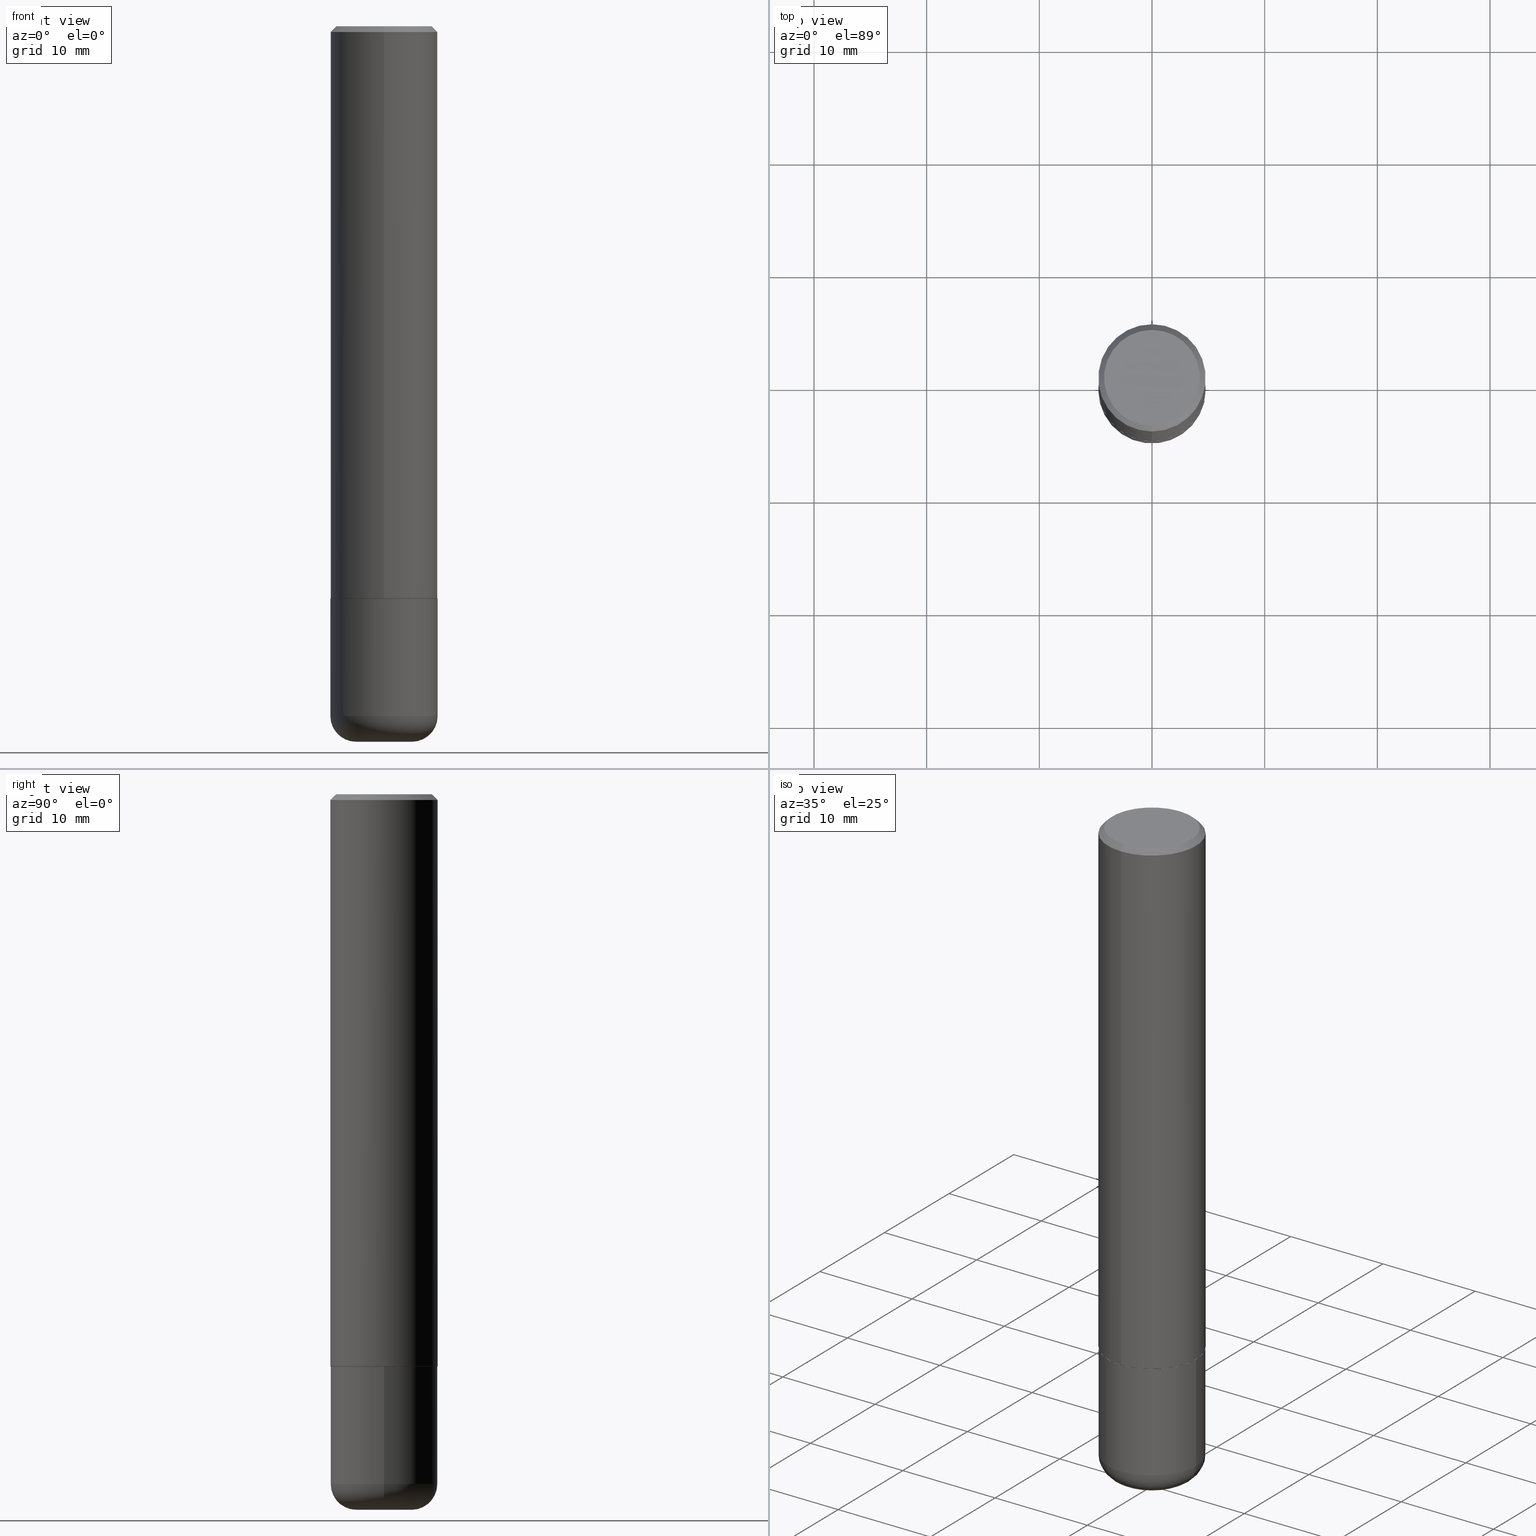
[diagram: canonical four-view strip — front | top / right | iso, engineering-drawing reading convention]
A machine part, canonical four-view strip (front | top / right | iso — engineering-drawing reading convention). The complete STEP part file that produces these views, byte-faithful:
ISO-10303-21;
HEADER;
FILE_DESCRIPTION (( 'STEP AP203' ),
    '1' );
FILE_NAME ('38819.STEP',
    '2024-03-03T14:47:22',
    ( '' ),
    ( '' ),
    'SwSTEP 2.0',
    'SolidWorks 2023',
    '' );
FILE_SCHEMA (( 'CONFIG_CONTROL_DESIGN' ));
ENDSEC;

DATA;
#1 = DIRECTION ( 'NONE',  ( 1.000000000000000000, -6.982962677686266711E-15, 0.000000000000000000 ) ) ;
#2 = EDGE_LOOP ( 'NONE', ( #22, #128, #374, #410 ) ) ;
#3 = DIRECTION ( 'NONE',  ( -2.445162114595160294E-29, 3.491920538655792902E-15, 1.000000000000000000 ) ) ;
#4 = ORIENTED_EDGE ( 'NONE', *, *, #284, .T. ) ;
#5 = ADVANCED_FACE ( 'NONE', ( #221 ), #319, .T. ) ;
#6 = DIRECTION ( 'NONE',  ( -6.982962677686265922E-15, -1.000000000000000000, 3.483106191921934371E-15 ) ) ;
#7 = DIRECTION ( 'NONE',  ( -2.445162114595160575E-29, 3.491920538655792507E-15, 1.000000000000000000 ) ) ;
#8 = DIRECTION ( 'NONE',  ( -2.445468806185136597E-29, 3.491481338843145583E-15, 1.000000000000000000 ) ) ;
#9 = CIRCLE ( 'NONE', #328, 0.09750000000000003109 ) ;
#10 = ORIENTED_EDGE ( 'NONE', *, *, #122, .T. ) ;
#11 = AXIS2_PLACEMENT_3D ( 'NONE', #102, #327, #169 ) ;
#12 = DIRECTION ( 'NONE',  ( 1.000000000000000000, -6.982962677686265133E-15, 4.883557194083112340E-29 ) ) ;
#13 = DIRECTION ( 'NONE',  ( 1.000000000000000000, -6.982962677686261189E-15, 0.000000000000000000 ) ) ;
#14 = DIRECTION ( 'NONE',  ( 1.000000000000000000, -6.982962677686265922E-15, 0.000000000000000000 ) ) ;
#15 = CONICAL_SURFACE ( 'NONE', #304, 0.1864999999999999714, 0.7853981633977044075 ) ;
#16 = VERTEX_POINT ( 'NONE', #381 ) ;
#17 =( NAMED_UNIT ( * ) SI_UNIT ( $, .STERADIAN. ) SOLID_ANGLE_UNIT ( ) );
#18 = FACE_OUTER_BOUND ( 'NONE', #183, .T. ) ;
#19 = AXIS2_PLACEMENT_3D ( 'NONE', #226, #133, #359 ) ;
#20 = CIRCLE ( 'NONE', #350, 0.1875000000000000278 ) ;
#21 = CARTESIAN_POINT ( 'NONE',  ( 0.09750000000000001721, -9.095308887686393314E-15, -2.410000000000000142 ) ) ;
#22 = ORIENTED_EDGE ( 'NONE', *, *, #253, .T. ) ;
#23 = DIRECTION ( 'NONE',  ( 1.000000000000000000, -6.982962677686265922E-15, 4.876176775795935793E-29 ) ) ;
#24 = CALENDAR_DATE ( 2024, 3, 3 ) ;
#25 = AXIS2_PLACEMENT_3D ( 'NONE', #299, #44, #165 ) ;
#26 = COORDINATED_UNIVERSAL_TIME_OFFSET ( 5, 0, .BEHIND. ) ;
#27 = CARTESIAN_POINT ( 'NONE',  ( 4.890937612370273194E-29, -6.982962677686291165E-15, -2.000000000000000000 ) ) ;
#28 = ORIENTED_EDGE ( 'NONE', *, *, #362, .F. ) ;
#29 = APPROVAL_STATUS ( 'not_yet_approved' ) ;
#30 = EDGE_CURVE ( 'NONE', #89, #55, #33, .T. ) ;
#31 = CARTESIAN_POINT ( 'NONE',  ( 4.890937612370273194E-29, -6.982962677686291165E-15, -2.000000000000000000 ) ) ;
#32 = ADVANCED_FACE ( 'NONE', ( #349 ), #172, .T. ) ;
#33 = LINE ( 'NONE', #211, #132 ) ;
#34 = PERSON_AND_ORGANIZATION_ROLE ( 'classification_officer' ) ;
#35 = CIRCLE ( 'NONE', #140, 0.1864999999999999714 ) ;
#36 = DIRECTION ( 'NONE',  ( -2.445162114595160575E-29, 3.491920538655792507E-15, 1.000000000000000000 ) ) ;
#37 =( GEOMETRIC_REPRESENTATION_CONTEXT ( 3 ) GLOBAL_UNCERTAINTY_ASSIGNED_CONTEXT ( ( #120 ) ) GLOBAL_UNIT_ASSIGNED_CONTEXT ( ( #343, #57, #17 ) ) REPRESENTATION_CONTEXT ( 'NONE', 'WORKASPACE' ) );
#38 = FACE_OUTER_BOUND ( 'NONE', #333, .T. ) ;
#39 = ADVANCED_FACE ( 'NONE', ( #287 ), #235, .T. ) ;
#40 = DIRECTION ( 'NONE',  ( -2.445468806185136597E-29, 3.491481338843145583E-15, 1.000000000000000000 ) ) ;
#41 = CARTESIAN_POINT ( 'NONE',  ( 4.890324229190321149E-29, -6.983841077311584226E-15, -1.999999999999999778 ) ) ;
#42 = CIRCLE ( 'NONE', #261, 0.1864999999999999714 ) ;
#43 = AXIS2_PLACEMENT_3D ( 'NONE', #21, #53, #177 ) ;
#44 = DIRECTION ( 'NONE',  ( 2.438088387897960049E-29, -3.491481338843145188E-15, -1.000000000000000000 ) ) ;
#45 = DIRECTION ( 'NONE',  ( 6.982962677686265922E-15, 1.000000000000000000, -3.483106191921934371E-15 ) ) ;
#46 = EDGE_CURVE ( 'NONE', #124, #115, #407, .T. ) ;
#47 = ORIENTED_EDGE ( 'NONE', *, *, #258, .T. ) ;
#48 = FACE_OUTER_BOUND ( 'NONE', #63, .T. ) ;
#49 = EDGE_LOOP ( 'NONE', ( #339, #47, #71, #142 ) ) ;
#50 = APPROVAL_PERSON_ORGANIZATION ( #179, #135, #310 ) ;
#51 = MECHANICAL_CONTEXT ( 'NONE', #340, 'mechanical' ) ;
#52 = ADVANCED_FACE ( 'NONE', ( #38 ), #77, .T. ) ;
#53 = DIRECTION ( 'NONE',  ( -6.982962677686266711E-15, -1.000000000000000000, 3.491481338843145583E-15 ) ) ;
#54 = LINE ( 'NONE', #303, #215 ) ;
#55 = VERTEX_POINT ( 'NONE', #123 ) ;
#56 = AXIS2_PLACEMENT_3D ( 'NONE', #85, #376, #272 ) ;
#57 =( NAMED_UNIT ( * ) PLANE_ANGLE_UNIT ( ) SI_UNIT ( $, .RADIAN. ) );
#58 = ORIENTED_EDGE ( 'NONE', *, *, #202, .F. ) ;
#59 = APPROVAL ( #158, 'UNSPECIFIED' ) ;
#60 = CALENDAR_DATE ( 2024, 3, 3 ) ;
#61 = CARTESIAN_POINT ( 'NONE',  ( 4.890324229190321149E-29, -6.983841077311584226E-15, -1.999999999999999778 ) ) ;
#62 = EDGE_CURVE ( 'NONE', #364, #401, #87, .T. ) ;
#63 = EDGE_LOOP ( 'NONE', ( #4, #157, #317, #232 ) ) ;
#64 = DIMENSIONAL_EXPONENTS ( 1.000000000000000000, 0.000000000000000000, 0.000000000000000000, 0.000000000000000000, 0.000000000000000000, 0.000000000000000000, 0.000000000000000000 ) ;
#65 = CC_DESIGN_PERSON_AND_ORGANIZATION_ASSIGNMENT ( #390, #93, ( #161 ) ) ;
#66 = ADVANCED_FACE ( 'NONE', ( #164 ), #154, .T. ) ;
#67 = APPROVAL_ROLE ( '' ) ;
#68 = DIRECTION ( 'NONE',  ( 1.000000000000000000, -6.982962677686265922E-15, 4.876176775795935793E-29 ) ) ;
#69 = PERSON_AND_ORGANIZATION_ROLE ( 'creator' ) ;
#70 = AXIS2_PLACEMENT_3D ( 'NONE', #352, #223, #68 ) ;
#71 = ORIENTED_EDGE ( 'NONE', *, *, #383, .T. ) ;
#72 = ORIENTED_EDGE ( 'NONE', *, *, #341, .F. ) ;
#73 = CARTESIAN_POINT ( 'NONE',  ( -1.302322539388439493E-15, -0.1865000000000069658, -1.999999999999999112 ) ) ;
#74 = ORIENTED_EDGE ( 'NONE', *, *, #398, .T. ) ;
#75 = CARTESIAN_POINT ( 'NONE',  ( 1.309305502066175797E-15, 0.1874999999999999722, -0.02000000000000069431 ) ) ;
#76 = LINE ( 'NONE', #297, #395 ) ;
#77 = CONICAL_SURFACE ( 'NONE', #178, 0.1864999999999999714, 0.7853981633977044075 ) ;
#78 = EDGE_CURVE ( 'NONE', #115, #124, #86, .T. ) ;
#79 = CARTESIAN_POINT ( 'NONE',  ( 0.09750000000000003109, -9.409542208182275000E-15, -2.500000000000000000 ) ) ;
#80 = FACE_OUTER_BOUND ( 'NONE', #129, .T. ) ;
#81 = CLOSED_SHELL ( 'NONE', ( #52, #176, #266, #32, #5, #219, #375, #298 ) ) ;
#82 = CIRCLE ( 'NONE', #11, 0.1875000000000000278 ) ;
#83 = APPROVAL_PERSON_ORGANIZATION ( #210, #59, #67 ) ;
#84 = CARTESIAN_POINT ( 'NONE',  ( 4.890324229190331589E-31, -6.983841077311600052E-17, -0.02000000000000004205 ) ) ;
#85 = CARTESIAN_POINT ( 'NONE',  ( 6.113672015462842613E-29, -8.728703347107864943E-15, -2.500000000000000000 ) ) ;
#86 = CIRCLE ( 'NONE', #348, 0.1675000000000000100 ) ;
#87 = LINE ( 'NONE', #282, #114 ) ;
#88 = DIRECTION ( 'NONE',  ( -6.982962677686265922E-15, -1.000000000000000000, 3.491920538655792902E-15 ) ) ;
#89 = VERTEX_POINT ( 'NONE', #180 ) ;
#90 = ADVANCED_FACE ( 'NONE', ( #213 ), #315, .F. ) ;
#91 = CONICAL_SURFACE ( 'NONE', #160, 0.1875000000000000555, 0.7853981633974473908 ) ;
#92 = LOCAL_TIME ( 9, 47, 22.00000000000000000, #314 ) ;
#93 = PERSON_AND_ORGANIZATION_ROLE ( 'design_supplier' ) ;
#94 = ORIENTED_EDGE ( 'NONE', *, *, #411, .F. ) ;
#95 = DIRECTION ( 'NONE',  ( 1.000000000000000000, -6.982962677686265133E-15, 4.883557194083112340E-29 ) ) ;
#96 = PERSON_AND_ORGANIZATION ( #273, #366 ) ;
#97 = ORIENTED_EDGE ( 'NONE', *, *, #341, .T. ) ;
#98 = ORIENTED_EDGE ( 'NONE', *, *, #105, .T. ) ;
#99 = AXIS2_PLACEMENT_3D ( 'NONE', #399, #106, #12 ) ;
#100 = DIRECTION ( 'NONE',  ( -6.982962677686265922E-15, -1.000000000000000000, 2.929595703661408850E-15 ) ) ;
#101 = LOCAL_TIME ( 9, 47, 22.00000000000000000, #246 ) ;
#102 = CARTESIAN_POINT ( 'NONE',  ( 5.893579822906179826E-29, -8.414470026611981678E-15, -2.410000000000000142 ) ) ;
#103 = CYLINDRICAL_SURFACE ( 'NONE', #200, 0.1875000000000001943 ) ;
#104 = APPROVAL ( #354, 'UNSPECIFIED' ) ;
#105 = EDGE_CURVE ( 'NONE', #16, #55, #312, .T. ) ;
#106 = DIRECTION ( 'NONE',  ( -2.445468806185136597E-29, 3.491481338843145583E-15, 1.000000000000000000 ) ) ;
#107 = AXIS2_PLACEMENT_3D ( 'NONE', #257, #392, #95 ) ;
#108 = ORIENTED_EDGE ( 'NONE', *, *, #413, .T. ) ;
#109 = CARTESIAN_POINT ( 'NONE',  ( 0.000000000000000000, 0.000000000000000000, 0.000000000000000000 ) ) ;
#110 = ORIENTED_EDGE ( 'NONE', *, *, #30, .T. ) ;
#111 = DIRECTION ( 'NONE',  ( 0.000000000000000000, 0.000000000000000000, 1.000000000000000000 ) ) ;
#112 = ORIENTED_EDGE ( 'NONE', *, *, #78, .F. ) ;
#113 = DIRECTION ( 'NONE',  ( -2.445468806185136877E-29, 3.491481338843145188E-15, 1.000000000000000000 ) ) ;
#114 = VECTOR ( 'NONE', #255, 39.37007874015748143 ) ;
#115 = VERTEX_POINT ( 'NONE', #311 ) ;
#116 = DIRECTION ( 'NONE',  ( -2.445162114595160575E-29, 3.491920538655792507E-15, 1.000000000000000000 ) ) ;
#117 = EDGE_CURVE ( 'NONE', #401, #16, #245, .T. ) ;
#118 = CARTESIAN_POINT ( 'NONE',  ( -0.09750000000000001721, -7.721690859245884565E-15, -2.410000000000000142 ) ) ;
#119 = ORIENTED_EDGE ( 'NONE', *, *, #46, .F. ) ;
#120 = UNCERTAINTY_MEASURE_WITH_UNIT (LENGTH_MEASURE( 1.000000000000000082E-05 ), #343, 'distance_accuracy_value', 'NONE');
#121 = CALENDAR_DATE ( 2024, 3, 3 ) ;
#122 = EDGE_CURVE ( 'NONE', #418, #296, #181, .T. ) ;
#123 = CARTESIAN_POINT ( 'NONE',  ( -1.286343374582161774E-15, -0.1875000000000001110, -0.01999999999999938979 ) ) ;
#124 = VERTEX_POINT ( 'NONE', #227 ) ;
#125 = DATE_AND_TIME ( #60, #280 ) ;
#126 = CARTESIAN_POINT ( 'NONE',  ( 4.890324229190331589E-31, -6.983841077311600052E-17, -0.02000000000000004205 ) ) ;
#127 = ORIENTED_EDGE ( 'NONE', *, *, #216, .F. ) ;
#128 = ORIENTED_EDGE ( 'NONE', *, *, #368, .T. ) ;
#129 = EDGE_LOOP ( 'NONE', ( #119, #286, #97, #320 ) ) ;
#130 = CC_DESIGN_DATE_AND_TIME_ASSIGNMENT ( #254, #414, ( #294 ) ) ;
#131 = CARTESIAN_POINT ( 'NONE',  ( 0.1875000000000000278, -8.292268179752466962E-15, -2.000000000000000000 ) ) ;
#132 = VECTOR ( 'NONE', #3, 39.37007874015748143 ) ;
#133 = DIRECTION ( 'NONE',  ( 2.445162114595160014E-29, -3.491920538655792902E-15, -1.000000000000000000 ) ) ;
#134 = FACE_OUTER_BOUND ( 'NONE', #355, .T. ) ;
#135 = APPROVAL ( #29, 'UNSPECIFIED' ) ;
#136 = ADVANCED_FACE ( 'NONE', ( #48 ), #242, .T. ) ;
#137 = DIRECTION ( 'NONE',  ( -6.982962677686266711E-15, -1.000000000000000000, 2.913971193241876428E-15 ) ) ;
#138 = DIRECTION ( 'NONE',  ( -2.445162114595160575E-29, 3.491920538655792507E-15, 1.000000000000000000 ) ) ;
#139 = CIRCLE ( 'NONE', #377, 0.1875000000000002776 ) ;
#140 = AXIS2_PLACEMENT_3D ( 'NONE', #378, #116, #305 ) ;
#141 = ORIENTED_EDGE ( 'NONE', *, *, #186, .T. ) ;
#142 = ORIENTED_EDGE ( 'NONE', *, *, #122, .F. ) ;
#143 = CARTESIAN_POINT ( 'NONE',  ( 0.1874999999999999722, -9.723775528678158264E-15, -2.410000000000000142 ) ) ;
#144 = CIRCLE ( 'NONE', #194, 0.1875000000000002776 ) ;
#145 = AXIS2_PLACEMENT_3D ( 'NONE', #201, #111, #233 ) ;
#146 = CARTESIAN_POINT ( 'NONE',  ( 1.332267629550213684E-15, 0.1874999999999933109, -1.999000000000000554 ) ) ;
#147 = EDGE_LOOP ( 'NONE', ( #326, #358, #110, #224 ) ) ;
#148 = DESIGN_CONTEXT ( 'detailed design', #268, 'design' ) ;
#149 = EDGE_CURVE ( 'NONE', #206, #89, #230, .T. ) ;
#150 = DIRECTION ( 'NONE',  ( -2.445162114595160575E-29, 3.491920538655792507E-15, 1.000000000000000000 ) ) ;
#151 = DATE_AND_TIME ( #24, #344 ) ;
#152 = VECTOR ( 'NONE', #182, 39.37007874015748143 ) ;
#153 = CALENDAR_DATE ( 2024, 3, 3 ) ;
#154 = CYLINDRICAL_SURFACE ( 'NONE', #70, 0.1875000000000000278 ) ;
#155 = PERSON_AND_ORGANIZATION ( #273, #366 ) ;
#156 = DIRECTION ( 'NONE',  ( -2.445468806185136597E-29, 3.491481338843145583E-15, 1.000000000000000000 ) ) ;
#157 = ORIENTED_EDGE ( 'NONE', *, *, #411, .T. ) ;
#158 = APPROVAL_STATUS ( 'not_yet_approved' ) ;
#159 = DIRECTION ( 'NONE',  ( 6.982962677686265922E-15, 1.000000000000000000, -3.483106191921934371E-15 ) ) ;
#160 = AXIS2_PLACEMENT_3D ( 'NONE', #264, #400, #45 ) ;
#161 = PRODUCT_DEFINITION_FORMATION_WITH_SPECIFIED_SOURCE ( 'ANY', '', #208, .NOT_KNOWN. ) ;
#162 = APPROVAL_DATE_TIME ( #281, #59 ) ;
#163 = CARTESIAN_POINT ( 'NONE',  ( -5.236590585173793708E-46, 7.478341868521650963E-32, 2.141612841912039052E-17 ) ) ;
#164 = FACE_OUTER_BOUND ( 'NONE', #49, .T. ) ;
#165 = DIRECTION ( 'NONE',  ( -1.000000000000000000, 6.982962677686265922E-15, -4.876176775795935793E-29 ) ) ;
#166 = AXIS2_PLACEMENT_3D ( 'NONE', #126, #285, #159 ) ;
#167 = CC_DESIGN_APPROVAL ( #104, ( #244 ) ) ;
#168 = CYLINDRICAL_SURFACE ( 'NONE', #229, 0.1875000000000000278 ) ;
#169 = DIRECTION ( 'NONE',  ( 1.000000000000000000, -6.982962677686261189E-15, 0.000000000000000000 ) ) ;
#170 = DIRECTION ( 'NONE',  ( -4.937700262165812586E-15, -0.7071067811867262076, 0.7071067811863689379 ) ) ;
#171 = CARTESIAN_POINT ( 'NONE',  ( 4.890324229190321149E-29, -6.983841077311584226E-15, -1.999999999999999778 ) ) ;
#172 = CONICAL_SURFACE ( 'NONE', #166, 0.1875000000000000555, 0.7853981633974473908 ) ;
#173 = EDGE_LOOP ( 'NONE', ( #108, #10 ) ) ;
#174 = CIRCLE ( 'NONE', #43, 0.08999999999999992728 ) ;
#175 = PERSON_AND_ORGANIZATION_ROLE ( 'design_owner' ) ;
#176 = ADVANCED_FACE ( 'NONE', ( #360 ), #103, .T. ) ;
#177 = DIRECTION ( 'NONE',  ( 1.000000000000000000, -6.982962677686273810E-15, 0.000000000000000000 ) ) ;
#178 = AXIS2_PLACEMENT_3D ( 'NONE', #61, #217, #188 ) ;
#179 = PERSON_AND_ORGANIZATION ( #273, #366 ) ;
#180 = CARTESIAN_POINT ( 'NONE',  ( -1.309305502066128268E-15, -0.1875000000000072442, -1.998999999999999444 ) ) ;
#181 = CIRCLE ( 'NONE', #279, 0.1875000000000000278 ) ;
#182 = DIRECTION ( 'NONE',  ( -2.445162114595160294E-29, 3.491920538655792902E-15, 1.000000000000000000 ) ) ;
#183 = EDGE_LOOP ( 'NONE', ( #28, #218 ) ) ;
#184 = DATE_TIME_ROLE ( 'creation_date' ) ;
#185 = DIRECTION ( 'NONE',  ( -2.445162114595160575E-29, 3.491920538655792507E-15, 1.000000000000000000 ) ) ;
#186 = EDGE_CURVE ( 'NONE', #115, #16, #263, .T. ) ;
#187 = CARTESIAN_POINT ( 'NONE',  ( -5.236590585173793708E-46, 7.478341868521650963E-32, 2.141612841912039052E-17 ) ) ;
#188 = DIRECTION ( 'NONE',  ( -6.982962677686265922E-15, -1.000000000000000000, 2.929595703661408850E-15 ) ) ;
#189 = ORIENTED_EDGE ( 'NONE', *, *, #149, .T. ) ;
#190 = CARTESIAN_POINT ( 'NONE',  ( 4.887879067075725967E-29, -6.980349156772927879E-15, -1.998999999999999888 ) ) ;
#191 = EDGE_CURVE ( 'NONE', #364, #206, #42, .T. ) ;
#192 = CARTESIAN_POINT ( 'NONE',  ( -0.09750000000000003109, -7.559063288401780041E-15, -2.500000000000000000 ) ) ;
#193 = VERTEX_POINT ( 'NONE', #79 ) ;
#194 = AXIS2_PLACEMENT_3D ( 'NONE', #190, #138, #267 ) ;
#195 = AXIS2_PLACEMENT_3D ( 'NONE', #338, #370, #409 ) ;
#196 = PLANE ( 'NONE',  #25 ) ;
#197 = DIRECTION ( 'NONE',  ( -4.851104656540959542E-15, -0.7071067811865493491, -0.7071067811865457964 ) ) ;
#198 = CARTESIAN_POINT ( 'NONE',  ( 6.113672015462842613E-29, -8.728703347107864943E-15, -2.500000000000000000 ) ) ;
#199 = APPLICATION_PROTOCOL_DEFINITION ( 'international standard', 'config_control_design', 1994, #340 ) ;
#200 = AXIS2_PLACEMENT_3D ( 'NONE', #109, #367, #262 ) ;
#201 = CARTESIAN_POINT ( 'NONE',  ( 0.000000000000000000, 0.000000000000000000, 0.000000000000000000 ) ) ;
#202 = EDGE_CURVE ( 'NONE', #401, #89, #139, .T. ) ;
#203 = ADVANCED_BREP_SHAPE_REPRESENTATION ( '38819', ( #270, #275, #145 ), #37 ) ;
#204 = DIRECTION ( 'NONE',  ( -6.982962677686265922E-15, -1.000000000000000000, 3.483106191921934371E-15 ) ) ;
#205 =( LENGTH_UNIT ( ) NAMED_UNIT ( * ) SI_UNIT ( $, .METRE. ) );
#206 = VERTEX_POINT ( 'NONE', #73 ) ;
#207 = AXIS2_PLACEMENT_3D ( 'NONE', #84, #150, #204 ) ;
#208 = PRODUCT ( '38819', '38819', '', ( #51 ) ) ;
#209 = CARTESIAN_POINT ( 'NONE',  ( -0.1875000000000000278, 1.332267629550188046E-15, -9.223003294227947991E-30 ) ) ;
#210 = PERSON_AND_ORGANIZATION ( #273, #366 ) ;
#211 = CARTESIAN_POINT ( 'NONE',  ( -1.309305502066176192E-15, -0.1875000000000001943, 6.547351009979617607E-16 ) ) ;
#212 = CALENDAR_DATE ( 2024, 3, 3 ) ;
#213 = FACE_OUTER_BOUND ( 'NONE', #173, .T. ) ;
#214 = VECTOR ( 'NONE', #170, 39.37007874015748143 ) ;
#215 = VECTOR ( 'NONE', #113, 39.37007874015748143 ) ;
#216 = EDGE_CURVE ( 'NONE', #124, #55, #76, .T. ) ;
#217 = DIRECTION ( 'NONE',  ( -2.445162114595160575E-29, 3.491920538655792507E-15, 1.000000000000000000 ) ) ;
#218 = ORIENTED_EDGE ( 'NONE', *, *, #191, .F. ) ;
#219 = ADVANCED_FACE ( 'NONE', ( #334 ), #15, .T. ) ;
#220 = ADVANCED_FACE ( 'NONE', ( #134 ), #196, .T. ) ;
#221 = FACE_OUTER_BOUND ( 'NONE', #147, .T. ) ;
#222 = DATE_AND_TIME ( #121, #92 ) ;
#223 = DIRECTION ( 'NONE',  ( -2.445468806185136597E-29, 3.491481338843145583E-15, 1.000000000000000000 ) ) ;
#224 = ORIENTED_EDGE ( 'NONE', *, *, #105, .F. ) ;
#225 = AXIS2_PLACEMENT_3D ( 'NONE', #163, #357, #88 ) ;
#226 = CARTESIAN_POINT ( 'NONE',  ( 1.169646248512449595E-15, 0.1675000000000000100, -5.741886260152851058E-16 ) ) ;
#227 = CARTESIAN_POINT ( 'NONE',  ( -1.217738394604446837E-15, -0.1675000000000000100, 6.063128186439657255E-16 ) ) ;
#228 = CARTESIAN_POINT ( 'NONE',  ( -1.302322539388439493E-15, -0.1865000000000069658, -1.999999999999999112 ) ) ;
#229 = AXIS2_PLACEMENT_3D ( 'NONE', #295, #412, #23 ) ;
#230 = LINE ( 'NONE', #228, #214 ) ;
#231 = CARTESIAN_POINT ( 'NONE',  ( 4.887879067075725967E-29, -6.980349156772927879E-15, -1.998999999999999888 ) ) ;
#232 = ORIENTED_EDGE ( 'NONE', *, *, #398, .F. ) ;
#233 = DIRECTION ( 'NONE',  ( 1.000000000000000000, 0.000000000000000000, 0.000000000000000000 ) ) ;
#234 = ORIENTED_EDGE ( 'NONE', *, *, #362, .T. ) ;
#235 = TOROIDAL_SURFACE ( 'NONE', #107, 0.09750000000000001721, 0.08999999999999992728 ) ;
#236 = LINE ( 'NONE', #209, #336 ) ;
#237 = CIRCLE ( 'NONE', #271, 0.1875000000000000278 ) ;
#238 = CARTESIAN_POINT ( 'NONE',  ( 1.328714915871436845E-15, 0.1864999999999929770, -2.000000000000000444 ) ) ;
#239 = LENGTH_MEASURE_WITH_UNIT ( LENGTH_MEASURE( 0.02539999999999999897 ), #205 );
#240 = CARTESIAN_POINT ( 'NONE',  ( -0.1875000000000000278, -6.366448722598948179E-15, -2.000000000000000000 ) ) ;
#241 = EDGE_LOOP ( 'NONE', ( #393, #331, #189, #58 ) ) ;
#242 = TOROIDAL_SURFACE ( 'NONE', #99, 0.09750000000000001721, 0.08999999999999992728 ) ;
#243 = AXIS2_PLACEMENT_3D ( 'NONE', #118, #274, #406 ) ;
#244 = PRODUCT_DEFINITION ( 'UNKNOWN', '', #161, #148 ) ;
#245 = LINE ( 'NONE', #379, #152 ) ;
#246 = COORDINATED_UNIVERSAL_TIME_OFFSET ( 5, 0, .BEHIND. ) ;
#247 = PRODUCT_DEFINITION_SHAPE ( 'NONE', 'NONE',  #244 ) ;
#248 = EDGE_LOOP ( 'NONE', ( #300, #292 ) ) ;
#249 = VERTEX_POINT ( 'NONE', #332 ) ;
#250 = SECURITY_CLASSIFICATION_LEVEL ( 'unclassified' ) ;
#251 = CARTESIAN_POINT ( 'NONE',  ( 0.000000000000000000, 0.000000000000000000, 0.000000000000000000 ) ) ;
#252 = ORIENTED_EDGE ( 'NONE', *, *, #149, .F. ) ;
#253 = EDGE_CURVE ( 'NONE', #389, #249, #82, .T. ) ;
#254 = DATE_AND_TIME ( #153, #101 ) ;
#255 = DIRECTION ( 'NONE',  ( 5.024295867789349022E-15, 0.7071067811867310926, 0.7071067811863640529 ) ) ;
#256 = COORDINATED_UNIVERSAL_TIME_OFFSET ( 5, 0, .BEHIND. ) ;
#257 = CARTESIAN_POINT ( 'NONE',  ( 5.893579822906179826E-29, -8.414470026611981678E-15, -2.410000000000000142 ) ) ;
#258 = EDGE_CURVE ( 'NONE', #249, #389, #237, .T. ) ;
#259 = FACE_OUTER_BOUND ( 'NONE', #248, .T. ) ;
#260 = CLOSED_SHELL ( 'NONE', ( #313, #136, #90, #66, #39, #220 ) ) ;
#261 = AXIS2_PLACEMENT_3D ( 'NONE', #171, #293, #100 ) ;
#262 = DIRECTION ( 'NONE',  ( -6.982962677686265922E-15, -1.000000000000000000, 3.491920538655792507E-15 ) ) ;
#263 = LINE ( 'NONE', #75, #402 ) ;
#264 = CARTESIAN_POINT ( 'NONE',  ( 4.890324229190331589E-31, -6.983841077311600052E-17, -0.02000000000000004205 ) ) ;
#265 = CC_DESIGN_PERSON_AND_ORGANIZATION_ASSIGNMENT ( #155, #34, ( #294 ) ) ;
#266 = ADVANCED_FACE ( 'NONE', ( #80 ), #91, .T. ) ;
#267 = DIRECTION ( 'NONE',  ( -6.982962677686266711E-15, -1.000000000000000000, 2.913971193241876428E-15 ) ) ;
#268 = APPLICATION_CONTEXT ( 'configuration controlled 3d designs of mechanical parts and assemblies' ) ;
#269 = PERSON_AND_ORGANIZATION ( #273, #366 ) ;
#270 = MANIFOLD_SOLID_BREP ( 'Body-Move/Copy2[1]', #260 ) ;
#271 = AXIS2_PLACEMENT_3D ( 'NONE', #369, #40, #13 ) ;
#272 = DIRECTION ( 'NONE',  ( 1.000000000000000000, -6.982962677686265922E-15, 0.000000000000000000 ) ) ;
#273 = PERSON ( 'UNSPECIFIED', 'UNSPECIFIED', 'UNSPECIFIED', ('UNSPECIFIED'), ('UNSPECIFIED'), ('UNSPECIFIED') ) ;
#274 = DIRECTION ( 'NONE',  ( 7.105427357601001859E-15, 1.000000000000000000, -3.491481338843145583E-15 ) ) ;
#275 = MANIFOLD_SOLID_BREP ( 'Body-Move/Copy2[2]', #81 ) ;
#276 = ORIENTED_EDGE ( 'NONE', *, *, #30, .F. ) ;
#277 = PLANE ( 'NONE',  #195 ) ;
#278 = APPROVAL_DATE_TIME ( #151, #135 ) ;
#279 = AXIS2_PLACEMENT_3D ( 'NONE', #31, #156, #1 ) ;
#280 = LOCAL_TIME ( 9, 47, 22.00000000000000000, #256 ) ;
#281 = DATE_AND_TIME ( #212, #415 ) ;
#282 = CARTESIAN_POINT ( 'NONE',  ( 1.325162202192635552E-15, 0.1864999999999929770, -2.000000000000000444 ) ) ;
#283 = ORIENTED_EDGE ( 'NONE', *, *, #330, .T. ) ;
#284 = EDGE_CURVE ( 'NONE', #193, #288, #9, .T. ) ;
#285 = DIRECTION ( 'NONE',  ( 2.445162114595160575E-29, -3.491920538655792507E-15, -1.000000000000000000 ) ) ;
#286 = ORIENTED_EDGE ( 'NONE', *, *, #216, .T. ) ;
#287 = FACE_OUTER_BOUND ( 'NONE', #335, .T. ) ;
#288 = VERTEX_POINT ( 'NONE', #192 ) ;
#289 = DIRECTION ( 'NONE',  ( -1.000000000000000000, 6.982962677686265922E-15, -4.876176775795935793E-29 ) ) ;
#290 = EDGE_CURVE ( 'NONE', #89, #401, #144, .T. ) ;
#291 = DIRECTION ( 'NONE',  ( -6.982962677686265922E-15, -1.000000000000000000, 3.491920538655792902E-15 ) ) ;
#292 = ORIENTED_EDGE ( 'NONE', *, *, #46, .T. ) ;
#293 = DIRECTION ( 'NONE',  ( -2.445162114595160575E-29, 3.491920538655792507E-15, 1.000000000000000000 ) ) ;
#294 = SECURITY_CLASSIFICATION ( '', '', #250 ) ;
#295 = CARTESIAN_POINT ( 'NONE',  ( 0.000000000000000000, 0.000000000000000000, 0.000000000000000000 ) ) ;
#296 = VERTEX_POINT ( 'NONE', #131 ) ;
#297 = CARTESIAN_POINT ( 'NONE',  ( -1.286343374582161774E-15, -0.1875000000000001110, -0.01999999999999938979 ) ) ;
#298 = ADVANCED_FACE ( 'NONE', ( #259 ), #394, .F. ) ;
#299 = CARTESIAN_POINT ( 'NONE',  ( 6.113672015462842613E-29, -8.728703347107864943E-15, -2.500000000000000000 ) ) ;
#300 = ORIENTED_EDGE ( 'NONE', *, *, #78, .T. ) ;
#301 = DIRECTION ( 'NONE',  ( -2.445162114595160575E-29, 3.491920538655792507E-15, 1.000000000000000000 ) ) ;
#302 = EDGE_LOOP ( 'NONE', ( #387, #345, #72, #276 ) ) ;
#303 = CARTESIAN_POINT ( 'NONE',  ( 0.1875000000000000278, -1.309305502066175008E-15, 9.142831454617381013E-30 ) ) ;
#304 = AXIS2_PLACEMENT_3D ( 'NONE', #41, #301, #404 ) ;
#305 = DIRECTION ( 'NONE',  ( -6.982962677686265922E-15, -1.000000000000000000, 2.929595703661408850E-15 ) ) ;
#306 = DIRECTION ( 'NONE',  ( -2.445468806185136597E-29, 3.491481338843145583E-15, 1.000000000000000000 ) ) ;
#307 = ORIENTED_EDGE ( 'NONE', *, *, #62, .T. ) ;
#308 = PRODUCT_RELATED_PRODUCT_CATEGORY ( 'detail', '', ( #208 ) ) ;
#309 = CC_DESIGN_DATE_AND_TIME_ASSIGNMENT ( #222, #184, ( #244 ) ) ;
#310 = APPROVAL_ROLE ( '' ) ;
#311 = CARTESIAN_POINT ( 'NONE',  ( 1.239475875289312696E-15, 0.1675000000000000100, -5.634805618057250307E-16 ) ) ;
#312 = CIRCLE ( 'NONE', #321, 0.1875000000000000555 ) ;
#313 = ADVANCED_FACE ( 'NONE', ( #325 ), #168, .T. ) ;
#314 = COORDINATED_UNIVERSAL_TIME_OFFSET ( 5, 0, .BEHIND. ) ;
#315 = PLANE ( 'NONE',  #371 ) ;
#316 = ORIENTED_EDGE ( 'NONE', *, *, #258, .F. ) ;
#317 = ORIENTED_EDGE ( 'NONE', *, *, #253, .F. ) ;
#318 = PERSON_AND_ORGANIZATION ( #273, #366 ) ;
#319 = CYLINDRICAL_SURFACE ( 'NONE', #385, 0.1875000000000001943 ) ;
#320 = ORIENTED_EDGE ( 'NONE', *, *, #186, .F. ) ;
#321 = AXIS2_PLACEMENT_3D ( 'NONE', #346, #185, #6 ) ;
#322 = CIRCLE ( 'NONE', #243, 0.08999999999999992728 ) ;
#323 = DIRECTION ( 'NONE',  ( 2.438088387897960049E-29, -3.491481338843145188E-15, -1.000000000000000000 ) ) ;
#324 = CC_DESIGN_PERSON_AND_ORGANIZATION_ASSIGNMENT ( #269, #175, ( #208 ) ) ;
#325 = FACE_OUTER_BOUND ( 'NONE', #2, .T. ) ;
#326 = ORIENTED_EDGE ( 'NONE', *, *, #117, .F. ) ;
#327 = DIRECTION ( 'NONE',  ( -2.445468806185136597E-29, 3.491481338843145583E-15, 1.000000000000000000 ) ) ;
#328 = AXIS2_PLACEMENT_3D ( 'NONE', #198, #8, #14 ) ;
#329 = CC_DESIGN_SECURITY_CLASSIFICATION ( #294, ( #161 ) ) ;
#330 = EDGE_CURVE ( 'NONE', #288, #193, #365, .T. ) ;
#331 = ORIENTED_EDGE ( 'NONE', *, *, #191, .T. ) ;
#332 = CARTESIAN_POINT ( 'NONE',  ( -0.1874999999999999722, -7.082202397061793830E-15, -2.410000000000000142 ) ) ;
#333 = EDGE_LOOP ( 'NONE', ( #234, #307, #353, #252 ) ) ;
#334 = FACE_OUTER_BOUND ( 'NONE', #241, .T. ) ;
#335 = EDGE_LOOP ( 'NONE', ( #94, #283, #74, #316 ) ) ;
#336 = VECTOR ( 'NONE', #373, 39.37007874015748143 ) ;
#337 = CARTESIAN_POINT ( 'NONE',  ( 4.890937612370273194E-29, -6.982962677686291165E-15, -2.000000000000000000 ) ) ;
#338 = CARTESIAN_POINT ( 'NONE',  ( 4.890324229190321710E-29, -6.983841077311585015E-15, -2.000000000000000000 ) ) ;
#339 = ORIENTED_EDGE ( 'NONE', *, *, #368, .F. ) ;
#340 = APPLICATION_CONTEXT ( 'configuration controlled 3d designs of mechanical parts and assemblies' ) ;
#341 = EDGE_CURVE ( 'NONE', #55, #16, #342, .T. ) ;
#342 = CIRCLE ( 'NONE', #207, 0.1875000000000000555 ) ;
#343 =( CONVERSION_BASED_UNIT ( 'INCH', #239 ) LENGTH_UNIT ( ) NAMED_UNIT ( #64 ) );
#344 = LOCAL_TIME ( 9, 47, 22.00000000000000000, #26 ) ;
#345 = ORIENTED_EDGE ( 'NONE', *, *, #117, .T. ) ;
#346 = CARTESIAN_POINT ( 'NONE',  ( 4.890324229190331589E-31, -6.983841077311600052E-17, -0.02000000000000004205 ) ) ;
#347 = APPLICATION_PROTOCOL_DEFINITION ( 'international standard', 'config_control_design', 1994, #268 ) ;
#348 = AXIS2_PLACEMENT_3D ( 'NONE', #187, #36, #291 ) ;
#349 = FACE_OUTER_BOUND ( 'NONE', #361, .T. ) ;
#350 = AXIS2_PLACEMENT_3D ( 'NONE', #337, #306, #372 ) ;
#351 = PERSON_AND_ORGANIZATION_ROLE ( 'creator' ) ;
#352 = CARTESIAN_POINT ( 'NONE',  ( 0.000000000000000000, 0.000000000000000000, 0.000000000000000000 ) ) ;
#353 = ORIENTED_EDGE ( 'NONE', *, *, #290, .F. ) ;
#354 = APPROVAL_STATUS ( 'not_yet_approved' ) ;
#355 = EDGE_LOOP ( 'NONE', ( #417, #382 ) ) ;
#356 = PERSON_AND_ORGANIZATION ( #273, #366 ) ;
#357 = DIRECTION ( 'NONE',  ( -2.445162114595160575E-29, 3.491920538655792507E-15, 1.000000000000000000 ) ) ;
#358 = ORIENTED_EDGE ( 'NONE', *, *, #202, .T. ) ;
#359 = DIRECTION ( 'NONE',  ( 6.982962677686265922E-15, 1.000000000000000000, -3.491920538655792902E-15 ) ) ;
#360 = FACE_OUTER_BOUND ( 'NONE', #302, .T. ) ;
#361 = EDGE_LOOP ( 'NONE', ( #127, #112, #141, #98 ) ) ;
#362 = EDGE_CURVE ( 'NONE', #206, #364, #35, .T. ) ;
#363 = DIRECTION ( 'NONE',  ( -2.445162114595160575E-29, 3.491920538655792507E-15, 1.000000000000000000 ) ) ;
#364 = VERTEX_POINT ( 'NONE', #238 ) ;
#365 = CIRCLE ( 'NONE', #56, 0.09750000000000003109 ) ;
#366 = ORGANIZATION ( 'UNSPECIFIED', 'UNSPECIFIED', '' ) ;
#367 = DIRECTION ( 'NONE',  ( -2.445162114595160575E-29, 3.491920538655792507E-15, 1.000000000000000000 ) ) ;
#368 = EDGE_CURVE ( 'NONE', #249, #418, #236, .T. ) ;
#369 = CARTESIAN_POINT ( 'NONE',  ( 5.893579822906179826E-29, -8.414470026611981678E-15, -2.410000000000000142 ) ) ;
#370 = DIRECTION ( 'NONE',  ( -2.445162114595160014E-29, 3.491920538655792902E-15, 1.000000000000000000 ) ) ;
#371 = AXIS2_PLACEMENT_3D ( 'NONE', #27, #323, #289 ) ;
#372 = DIRECTION ( 'NONE',  ( 1.000000000000000000, -6.982962677686266711E-15, 0.000000000000000000 ) ) ;
#373 = DIRECTION ( 'NONE',  ( -2.445468806185136877E-29, 3.491481338843145188E-15, 1.000000000000000000 ) ) ;
#374 = ORIENTED_EDGE ( 'NONE', *, *, #413, .F. ) ;
#375 = ADVANCED_FACE ( 'NONE', ( #18 ), #277, .F. ) ;
#376 = DIRECTION ( 'NONE',  ( -2.445468806185136597E-29, 3.491481338843145583E-15, 1.000000000000000000 ) ) ;
#377 = AXIS2_PLACEMENT_3D ( 'NONE', #231, #363, #137 ) ;
#378 = CARTESIAN_POINT ( 'NONE',  ( 4.890324229190321149E-29, -6.983841077311584226E-15, -1.999999999999999778 ) ) ;
#379 = CARTESIAN_POINT ( 'NONE',  ( 1.332267629550188835E-15, 0.1875000000000001943, -6.547351009979617607E-16 ) ) ;
#380 = APPROVAL_ROLE ( '' ) ;
#381 = CARTESIAN_POINT ( 'NONE',  ( 1.309305502066175797E-15, 0.1874999999999999722, -0.02000000000000069431 ) ) ;
#382 = ORIENTED_EDGE ( 'NONE', *, *, #330, .F. ) ;
#383 = EDGE_CURVE ( 'NONE', #389, #296, #54, .T. ) ;
#384 = APPROVAL_DATE_TIME ( #125, #104 ) ;
#385 = AXIS2_PLACEMENT_3D ( 'NONE', #251, #7, #386 ) ;
#386 = DIRECTION ( 'NONE',  ( -6.982962677686265922E-15, -1.000000000000000000, 3.491920538655792507E-15 ) ) ;
#387 = ORIENTED_EDGE ( 'NONE', *, *, #290, .T. ) ;
#388 = SHAPE_DEFINITION_REPRESENTATION ( #247, #203 ) ;
#389 = VERTEX_POINT ( 'NONE', #143 ) ;
#390 = PERSON_AND_ORGANIZATION ( #273, #366 ) ;
#391 = CC_DESIGN_PERSON_AND_ORGANIZATION_ASSIGNMENT ( #356, #69, ( #244 ) ) ;
#392 = DIRECTION ( 'NONE',  ( -2.445468806185136597E-29, 3.491481338843145583E-15, 1.000000000000000000 ) ) ;
#393 = ORIENTED_EDGE ( 'NONE', *, *, #62, .F. ) ;
#394 = PLANE ( 'NONE',  #19 ) ;
#395 = VECTOR ( 'NONE', #197, 39.37007874015748143 ) ;
#396 = APPROVAL_PERSON_ORGANIZATION ( #96, #104, #380 ) ;
#397 = DIRECTION ( 'NONE',  ( 4.937700262164543309E-15, 0.7071067811865444641, -0.7071067811865506814 ) ) ;
#398 = EDGE_CURVE ( 'NONE', #193, #389, #174, .T. ) ;
#399 = CARTESIAN_POINT ( 'NONE',  ( 5.893579822906179826E-29, -8.414470026611981678E-15, -2.410000000000000142 ) ) ;
#400 = DIRECTION ( 'NONE',  ( 2.445162114595160575E-29, -3.491920538655792507E-15, -1.000000000000000000 ) ) ;
#401 = VERTEX_POINT ( 'NONE', #146 ) ;
#402 = VECTOR ( 'NONE', #397, 39.37007874015748143 ) ;
#403 = CC_DESIGN_APPROVAL ( #135, ( #161 ) ) ;
#404 = DIRECTION ( 'NONE',  ( -6.982962677686265922E-15, -1.000000000000000000, 2.929595703661408850E-15 ) ) ;
#405 = CC_DESIGN_PERSON_AND_ORGANIZATION_ASSIGNMENT ( #318, #351, ( #161 ) ) ;
#406 = DIRECTION ( 'NONE',  ( -1.000000000000000000, 7.105427357600996337E-15, 0.000000000000000000 ) ) ;
#407 = CIRCLE ( 'NONE', #225, 0.1675000000000000100 ) ;
#408 = CC_DESIGN_APPROVAL ( #59, ( #294 ) ) ;
#409 = DIRECTION ( 'NONE',  ( -6.982962677686265922E-15, -1.000000000000000000, 3.491920538655792902E-15 ) ) ;
#410 = ORIENTED_EDGE ( 'NONE', *, *, #383, .F. ) ;
#411 = EDGE_CURVE ( 'NONE', #288, #249, #322, .T. ) ;
#412 = DIRECTION ( 'NONE',  ( -2.445468806185136597E-29, 3.491481338843145583E-15, 1.000000000000000000 ) ) ;
#413 = EDGE_CURVE ( 'NONE', #296, #418, #20, .T. ) ;
#414 = DATE_TIME_ROLE ( 'classification_date' ) ;
#415 = LOCAL_TIME ( 9, 47, 22.00000000000000000, #416 ) ;
#416 = COORDINATED_UNIVERSAL_TIME_OFFSET ( 5, 0, .BEHIND. ) ;
#417 = ORIENTED_EDGE ( 'NONE', *, *, #284, .F. ) ;
#418 = VERTEX_POINT ( 'NONE', #240 ) ;
ENDSEC;
END-ISO-10303-21;
